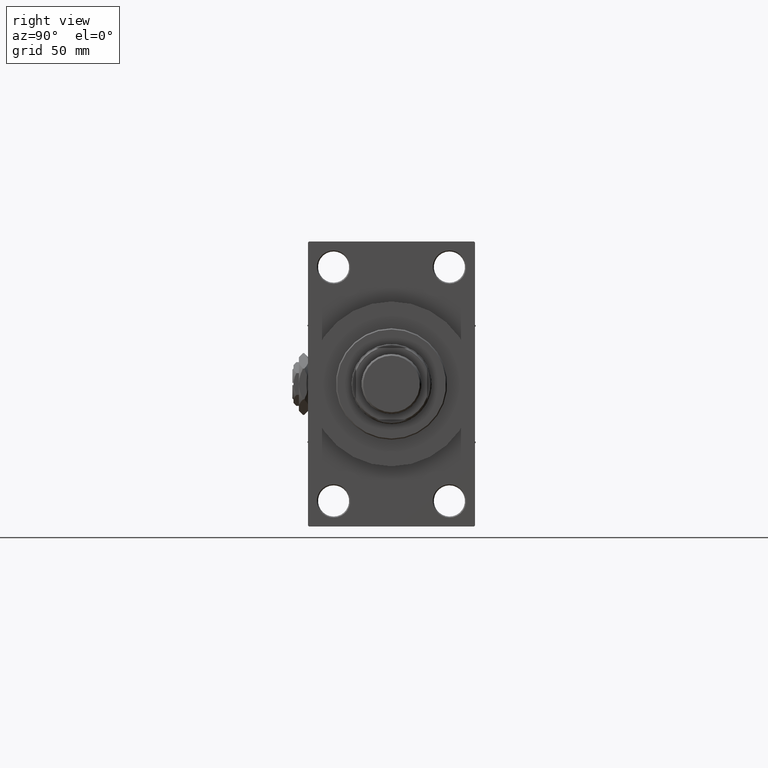
[diagram: clean part render]
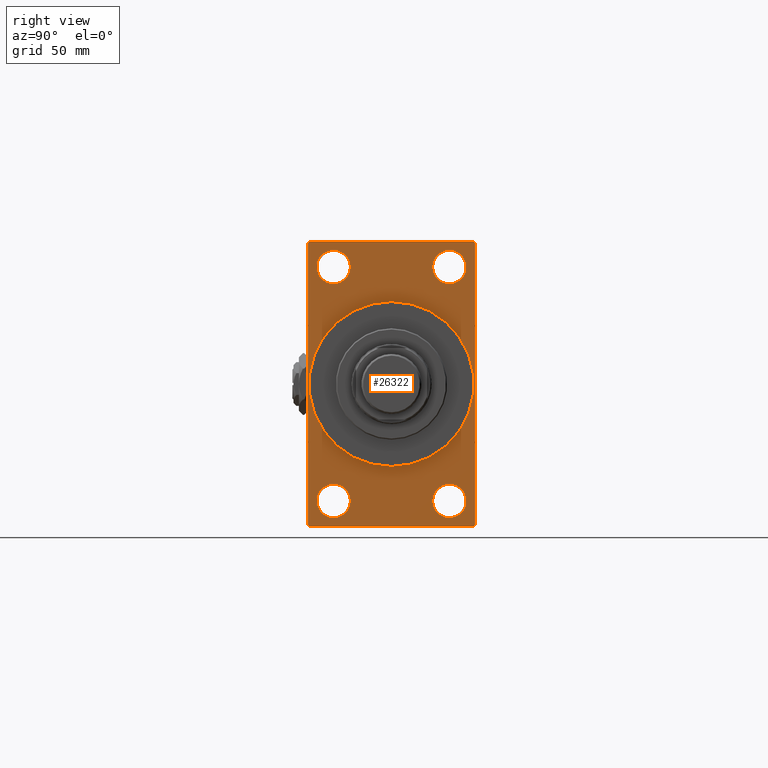
[diagram: same view with one face highlighted and labeled with its STEP entity id]
A machine part, right view. The second image highlights one B-rep face of the part: STEP entity #26322.
In plain terms, the highlighted planar face has unit normal (-1, 0, 0).
Its self-contained STEP definition (entity closure, byte-faithful):
#1039 = VECTOR ( 'NONE', #48034, 1000.000000000000000 ) ;
#1046 = VERTEX_POINT ( 'NONE', #46269 ) ;
#1050 = ORIENTED_EDGE ( 'NONE', *, *, #34418, .T. ) ;
#1537 = VERTEX_POINT ( 'NONE', #19004 ) ;
#1660 = EDGE_CURVE ( 'NONE', #3055, #49784, #23196, .T. ) ;
#1868 = CIRCLE ( 'NONE', #16307, 37.00000000000000000 ) ;
#2167 = VECTOR ( 'NONE', #30115, 1000.000000000000000 ) ;
#2184 = FACE_BOUND ( 'NONE', #27891, .T. ) ;
#2247 = DIRECTION ( 'NONE',  ( 0.000000000000000000, 0.000000000000000000, 1.000000000000000000 ) ) ;
#2387 = CARTESIAN_POINT ( 'NONE',  ( 198.0000000000000000, 26.00000000000000000, -59.99999999999997158 ) ) ;
#2491 = LINE ( 'NONE', #26612, #21921 ) ;
#2657 = DIRECTION ( 'NONE',  ( -1.000000000000000000, 0.000000000000000000, -0.000000000000000000 ) ) ;
#2676 = CARTESIAN_POINT ( 'NONE',  ( 198.0000000000000000, 37.49999999999999289, -63.50000000000001421 ) ) ;
#2703 = EDGE_CURVE ( 'NONE', #1537, #42843, #45675, .T. ) ;
#2973 = EDGE_LOOP ( 'NONE', ( #38122, #17499 ) ) ;
#3055 = VERTEX_POINT ( 'NONE', #6186 ) ;
#3087 = CARTESIAN_POINT ( 'NONE',  ( 198.0000000000000000, -25.99999999999999645, -52.49999999999999289 ) ) ;
#3160 = VERTEX_POINT ( 'NONE', #45623 ) ;
#3847 = CARTESIAN_POINT ( 'NONE',  ( 198.0000000000000000, 37.00000000000000000, 63.99999999999998579 ) ) ;
#3928 = CIRCLE ( 'NONE', #32078, 7.499999999999978684 ) ;
#4101 = VERTEX_POINT ( 'NONE', #19504 ) ;
#4181 = DIRECTION ( 'NONE',  ( -0.000000000000000000, 0.7071067811865376918, 0.7071067811865573427 ) ) ;
#4772 = VERTEX_POINT ( 'NONE', #29937 ) ;
#5464 = FACE_BOUND ( 'NONE', #35443, .T. ) ;
#6049 = ORIENTED_EDGE ( 'NONE', *, *, #14777, .T. ) ;
#6061 = CIRCLE ( 'NONE', #47026, 7.499999999999978684 ) ;
#6186 = CARTESIAN_POINT ( 'NONE',  ( 198.0000000000000000, 26.00000000000000000, -45.00000000000001421 ) ) ;
#6196 = FACE_BOUND ( 'NONE', #2973, .T. ) ;
#6477 = AXIS2_PLACEMENT_3D ( 'NONE', #33133, #9739, #48690 ) ;
#6580 = VERTEX_POINT ( 'NONE', #13631 ) ;
#6827 = VECTOR ( 'NONE', #21069, 1000.000000000000000 ) ;
#7623 = LINE ( 'NONE', #3847, #35552 ) ;
#7680 = CARTESIAN_POINT ( 'NONE',  ( 198.0000000000000000, -36.99999999999999289, -64.00000000000001421 ) ) ;
#9084 = AXIS2_PLACEMENT_3D ( 'NONE', #45157, #37599, #25326 ) ;
#9564 = DIRECTION ( 'NONE',  ( 0.000000000000000000, 0.000000000000000000, 1.000000000000000000 ) ) ;
#9597 = ORIENTED_EDGE ( 'NONE', *, *, #1660, .T. ) ;
#9739 = DIRECTION ( 'NONE',  ( -1.000000000000000000, 0.000000000000000000, -0.000000000000000000 ) ) ;
#10105 = ORIENTED_EDGE ( 'NONE', *, *, #48855, .T. ) ;
#10218 = DIRECTION ( 'NONE',  ( 0.000000000000000000, 0.000000000000000000, -1.000000000000000000 ) ) ;
#10412 = ORIENTED_EDGE ( 'NONE', *, *, #31544, .T. ) ;
#11212 = CIRCLE ( 'NONE', #13648, 7.499999999999978684 ) ;
#11604 = VERTEX_POINT ( 'NONE', #16070 ) ;
#12847 = CARTESIAN_POINT ( 'NONE',  ( 198.0000000000000000, 37.50000000000000000, 63.99999999999998579 ) ) ;
#12959 = EDGE_CURVE ( 'NONE', #6580, #46791, #31105, .T. ) ;
#13180 = LINE ( 'NONE', #32292, #23597 ) ;
#13631 = CARTESIAN_POINT ( 'NONE',  ( 198.0000000000000000, 37.00000000000002132, -64.00000000000000000 ) ) ;
#13648 = AXIS2_PLACEMENT_3D ( 'NONE', #28202, #43539, #9564 ) ;
#14100 = ORIENTED_EDGE ( 'NONE', *, *, #2703, .T. ) ;
#14289 = DIRECTION ( 'NONE',  ( -1.000000000000000000, 0.000000000000000000, -0.000000000000000000 ) ) ;
#14777 = EDGE_CURVE ( 'NONE', #1046, #44806, #32703, .T. ) ;
#14801 = DIRECTION ( 'NONE',  ( 0.000000000000000000, 0.000000000000000000, -1.000000000000000000 ) ) ;
#14810 = EDGE_CURVE ( 'NONE', #4101, #3160, #2491, .T. ) ;
#15202 = EDGE_CURVE ( 'NONE', #11604, #47715, #1868, .T. ) ;
#15785 = ORIENTED_EDGE ( 'NONE', *, *, #27083, .T. ) ;
#15951 = AXIS2_PLACEMENT_3D ( 'NONE', #20031, #30820, #39372 ) ;
#16070 = CARTESIAN_POINT ( 'NONE',  ( 198.0000000000000000, 0.000000000000000000, 37.00000000000000000 ) ) ;
#16307 = AXIS2_PLACEMENT_3D ( 'NONE', #25342, #48460, #10218 ) ;
#16794 = DIRECTION ( 'NONE',  ( 0.000000000000000000, -1.000000000000000000, -1.850371707708594563E-16 ) ) ;
#17342 = DIRECTION ( 'NONE',  ( -1.000000000000000000, 0.000000000000000000, -0.000000000000000000 ) ) ;
#17499 = ORIENTED_EDGE ( 'NONE', *, *, #18566, .T. ) ;
#18390 = DIRECTION ( 'NONE',  ( -1.000000000000000000, 0.000000000000000000, -0.000000000000000000 ) ) ;
#18566 = EDGE_CURVE ( 'NONE', #29817, #4772, #41294, .T. ) ;
#18795 = LINE ( 'NONE', #22819, #2167 ) ;
#19004 = CARTESIAN_POINT ( 'NONE',  ( 198.0000000000000000, -25.99999999999999645, 59.99999999999997868 ) ) ;
#19504 = CARTESIAN_POINT ( 'NONE',  ( 198.0000000000000000, -37.49999999999999289, 63.50000000000000000 ) ) ;
#19649 = VERTEX_POINT ( 'NONE', #26632 ) ;
#19792 = VERTEX_POINT ( 'NONE', #37884 ) ;
#20031 = CARTESIAN_POINT ( 'NONE',  ( 198.0000000000000000, 26.00000000000000000, -52.49999999999999289 ) ) ;
#20135 = DIRECTION ( 'NONE',  ( 0.000000000000000000, 0.000000000000000000, 1.000000000000000000 ) ) ;
#20182 = ORIENTED_EDGE ( 'NONE', *, *, #21298, .F. ) ;
#21069 = DIRECTION ( 'NONE',  ( -0.000000000000000000, -0.7071067811865524577, -0.7071067811865426878 ) ) ;
#21081 = DIRECTION ( 'NONE',  ( -0.000000000000000000, 0.000000000000000000, 1.000000000000000000 ) ) ;
#21268 = AXIS2_PLACEMENT_3D ( 'NONE', #3087, #45831, #30014 ) ;
#21298 = EDGE_CURVE ( 'NONE', #45406, #46791, #18795, .T. ) ;
#21553 = FACE_BOUND ( 'NONE', #34045, .T. ) ;
#21615 = AXIS2_PLACEMENT_3D ( 'NONE', #25137, #17342, #20135 ) ;
#21651 = CARTESIAN_POINT ( 'NONE',  ( 198.0000000000000000, -25.99999999999999645, -45.00000000000001421 ) ) ;
#21921 = VECTOR ( 'NONE', #14801, 1000.000000000000000 ) ;
#22101 = CARTESIAN_POINT ( 'NONE',  ( 198.0000000000000000, -25.99999999999999645, 52.50000000000000000 ) ) ;
#22819 = CARTESIAN_POINT ( 'NONE',  ( 198.0000000000000000, 37.50000000000000000, 63.99999999999998579 ) ) ;
#23034 = EDGE_LOOP ( 'NONE', ( #23360, #24391, #31914, #48922, #20182, #1050, #6049, #10105 ) ) ;
#23196 = CIRCLE ( 'NONE', #15951, 7.499999999999978684 ) ;
#23360 = ORIENTED_EDGE ( 'NONE', *, *, #14810, .T. ) ;
#23597 = VECTOR ( 'NONE', #47631, 1000.000000000000000 ) ;
#24356 = LINE ( 'NONE', #28861, #30747 ) ;
#24391 = ORIENTED_EDGE ( 'NONE', *, *, #41111, .T. ) ;
#24841 = FACE_BOUND ( 'NONE', #35069, .T. ) ;
#25088 = FACE_OUTER_BOUND ( 'NONE', #23034, .T. ) ;
#25137 = CARTESIAN_POINT ( 'NONE',  ( 198.0000000000000000, -25.99999999999999645, 52.50000000000000000 ) ) ;
#25326 = DIRECTION ( 'NONE',  ( 0.000000000000000000, 0.000000000000000000, -1.000000000000000000 ) ) ;
#25342 = CARTESIAN_POINT ( 'NONE',  ( 198.0000000000000000, 0.000000000000000000, 0.000000000000000000 ) ) ;
#25930 = CARTESIAN_POINT ( 'NONE',  ( 198.0000000000000000, 26.00000000000000000, 52.49999999999999289 ) ) ;
#26322 = ADVANCED_FACE ( 'NONE', ( #5464, #6196, #2184, #21553, #24841, #25088 ), #29340, .F. ) ;
#26612 = CARTESIAN_POINT ( 'NONE',  ( 198.0000000000000000, -37.49999999999999289, 63.99999999999997158 ) ) ;
#26632 = CARTESIAN_POINT ( 'NONE',  ( 198.0000000000000000, 26.00000000000000000, 45.00000000000001421 ) ) ;
#26745 = DIRECTION ( 'NONE',  ( 0.000000000000000000, -0.7071067811865474617, 0.7071067811865474617 ) ) ;
#27083 = EDGE_CURVE ( 'NONE', #19649, #19792, #3928, .T. ) ;
#27357 = EDGE_CURVE ( 'NONE', #42843, #1537, #45678, .T. ) ;
#27473 = VECTOR ( 'NONE', #4181, 1000.000000000000114 ) ;
#27795 = EDGE_CURVE ( 'NONE', #19792, #19649, #11212, .T. ) ;
#27891 = EDGE_LOOP ( 'NONE', ( #10412, #9597 ) ) ;
#28030 = AXIS2_PLACEMENT_3D ( 'NONE', #37114, #2657, #21081 ) ;
#28202 = CARTESIAN_POINT ( 'NONE',  ( 198.0000000000000000, 26.00000000000000000, 52.49999999999999289 ) ) ;
#28861 = CARTESIAN_POINT ( 'NONE',  ( 198.0000000000000000, 37.49999999999999289, -64.00000000000000000 ) ) ;
#29340 = PLANE ( 'NONE',  #28030 ) ;
#29476 = CARTESIAN_POINT ( 'NONE',  ( 198.0000000000000000, -25.99999999999999645, 45.00000000000002132 ) ) ;
#29817 = VERTEX_POINT ( 'NONE', #21651 ) ;
#29937 = CARTESIAN_POINT ( 'NONE',  ( 198.0000000000000000, -25.99999999999999645, -59.99999999999997158 ) ) ;
#30014 = DIRECTION ( 'NONE',  ( 0.000000000000000000, 0.000000000000000000, 1.000000000000000000 ) ) ;
#30115 = DIRECTION ( 'NONE',  ( 0.000000000000000000, -5.421010862427522170E-17, -1.000000000000000000 ) ) ;
#30747 = VECTOR ( 'NONE', #16794, 1000.000000000000000 ) ;
#30820 = DIRECTION ( 'NONE',  ( -1.000000000000000000, 0.000000000000000000, -0.000000000000000000 ) ) ;
#31105 = LINE ( 'NONE', #42412, #27473 ) ;
#31544 = EDGE_CURVE ( 'NONE', #49784, #3055, #49047, .T. ) ;
#31914 = ORIENTED_EDGE ( 'NONE', *, *, #39095, .F. ) ;
#32078 = AXIS2_PLACEMENT_3D ( 'NONE', #25930, #18390, #33723 ) ;
#32292 = CARTESIAN_POINT ( 'NONE',  ( 198.0000000000000000, -36.99999999999999289, -64.00000000000001421 ) ) ;
#32703 = LINE ( 'NONE', #12847, #1039 ) ;
#33133 = CARTESIAN_POINT ( 'NONE',  ( 198.0000000000000000, 26.00000000000000000, -52.49999999999999289 ) ) ;
#33176 = DIRECTION ( 'NONE',  ( 0.000000000000000000, 0.000000000000000000, 1.000000000000000000 ) ) ;
#33723 = DIRECTION ( 'NONE',  ( 0.000000000000000000, 0.000000000000000000, 1.000000000000000000 ) ) ;
#34045 = EDGE_LOOP ( 'NONE', ( #15785, #34378 ) ) ;
#34378 = ORIENTED_EDGE ( 'NONE', *, *, #27795, .T. ) ;
#34418 = EDGE_CURVE ( 'NONE', #45406, #1046, #7623, .T. ) ;
#35069 = EDGE_LOOP ( 'NONE', ( #40747, #43449 ) ) ;
#35443 = EDGE_LOOP ( 'NONE', ( #40895, #14100 ) ) ;
#35552 = VECTOR ( 'NONE', #26745, 1000.000000000000114 ) ;
#36380 = CARTESIAN_POINT ( 'NONE',  ( 198.0000000000000000, -37.49999999999999289, 63.50000000000000000 ) ) ;
#36703 = DIRECTION ( 'NONE',  ( -1.000000000000000000, 0.000000000000000000, -0.000000000000000000 ) ) ;
#37114 = CARTESIAN_POINT ( 'NONE',  ( 198.0000000000000000, 0.000000000000000000, 0.000000000000000000 ) ) ;
#37599 = DIRECTION ( 'NONE',  ( 1.000000000000000000, 0.000000000000000000, 0.000000000000000000 ) ) ;
#37884 = CARTESIAN_POINT ( 'NONE',  ( 198.0000000000000000, 26.00000000000000000, 59.99999999999997158 ) ) ;
#38122 = ORIENTED_EDGE ( 'NONE', *, *, #44823, .T. ) ;
#39095 = EDGE_CURVE ( 'NONE', #6580, #43595, #24356, .T. ) ;
#39133 = EDGE_CURVE ( 'NONE', #47715, #11604, #42017, .T. ) ;
#39372 = DIRECTION ( 'NONE',  ( 0.000000000000000000, 0.000000000000000000, 1.000000000000000000 ) ) ;
#40457 = CARTESIAN_POINT ( 'NONE',  ( 198.0000000000000000, 4.531193156845206793E-15, -37.00000000000000000 ) ) ;
#40747 = ORIENTED_EDGE ( 'NONE', *, *, #15202, .F. ) ;
#40895 = ORIENTED_EDGE ( 'NONE', *, *, #27357, .T. ) ;
#41111 = EDGE_CURVE ( 'NONE', #3160, #43595, #13180, .T. ) ;
#41294 = CIRCLE ( 'NONE', #21268, 7.499999999999978684 ) ;
#42017 = CIRCLE ( 'NONE', #9084, 37.00000000000000000 ) ;
#42252 = CARTESIAN_POINT ( 'NONE',  ( 198.0000000000000000, 37.50000000000000000, 63.49999999999998579 ) ) ;
#42412 = CARTESIAN_POINT ( 'NONE',  ( 198.0000000000000000, 37.49999999999999289, -63.50000000000001421 ) ) ;
#42843 = VERTEX_POINT ( 'NONE', #29476 ) ;
#43449 = ORIENTED_EDGE ( 'NONE', *, *, #39133, .F. ) ;
#43539 = DIRECTION ( 'NONE',  ( -1.000000000000000000, 0.000000000000000000, -0.000000000000000000 ) ) ;
#43595 = VERTEX_POINT ( 'NONE', #7680 ) ;
#44422 = LINE ( 'NONE', #36380, #6827 ) ;
#44722 = CARTESIAN_POINT ( 'NONE',  ( 198.0000000000000000, -37.00000000000001421, 63.99999999999997158 ) ) ;
#44806 = VERTEX_POINT ( 'NONE', #44722 ) ;
#44823 = EDGE_CURVE ( 'NONE', #4772, #29817, #6061, .T. ) ;
#44894 = AXIS2_PLACEMENT_3D ( 'NONE', #22101, #36703, #2247 ) ;
#45157 = CARTESIAN_POINT ( 'NONE',  ( 198.0000000000000000, 0.000000000000000000, 0.000000000000000000 ) ) ;
#45406 = VERTEX_POINT ( 'NONE', #42252 ) ;
#45623 = CARTESIAN_POINT ( 'NONE',  ( 198.0000000000000000, -37.49999999999999289, -63.50000000000002842 ) ) ;
#45675 = CIRCLE ( 'NONE', #21615, 7.499999999999978684 ) ;
#45678 = CIRCLE ( 'NONE', #44894, 7.499999999999978684 ) ;
#45831 = DIRECTION ( 'NONE',  ( -1.000000000000000000, 0.000000000000000000, -0.000000000000000000 ) ) ;
#46269 = CARTESIAN_POINT ( 'NONE',  ( 198.0000000000000000, 37.00000000000000000, 63.99999999999998579 ) ) ;
#46791 = VERTEX_POINT ( 'NONE', #2676 ) ;
#47026 = AXIS2_PLACEMENT_3D ( 'NONE', #48497, #14289, #33176 ) ;
#47631 = DIRECTION ( 'NONE',  ( 0.000000000000000000, 0.7071067811865573427, -0.7071067811865378028 ) ) ;
#47715 = VERTEX_POINT ( 'NONE', #40457 ) ;
#48034 = DIRECTION ( 'NONE',  ( 0.000000000000000000, -1.000000000000000000, -1.850371707708594563E-16 ) ) ;
#48460 = DIRECTION ( 'NONE',  ( 1.000000000000000000, 0.000000000000000000, 0.000000000000000000 ) ) ;
#48497 = CARTESIAN_POINT ( 'NONE',  ( 198.0000000000000000, -25.99999999999999645, -52.49999999999999289 ) ) ;
#48690 = DIRECTION ( 'NONE',  ( 0.000000000000000000, 0.000000000000000000, 1.000000000000000000 ) ) ;
#48855 = EDGE_CURVE ( 'NONE', #44806, #4101, #44422, .T. ) ;
#48922 = ORIENTED_EDGE ( 'NONE', *, *, #12959, .T. ) ;
#49047 = CIRCLE ( 'NONE', #6477, 7.499999999999978684 ) ;
#49784 = VERTEX_POINT ( 'NONE', #2387 ) ;